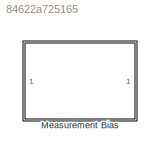
MODEL slx_84622a725165
KIND library
CONFIG AbsTol = auto
CONFIG EnableMultiTasking = off
CONFIG FixedStep = auto
CONFIG MaxStep = auto
CONFIG MinStep = auto
CONFIG RelTol = 1e-3
CONFIG SampleTimeConstraint = Unconstrained
CONFIG Solver = VariableStepAuto
CONFIG SolverName = VariableStepAuto
CONFIG StartTime = 0.0
CONFIG StopTime = 10.0
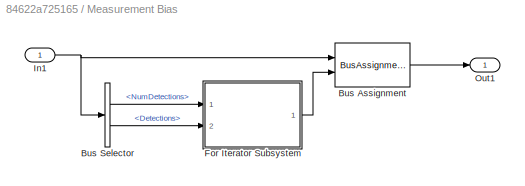
BLOCK [SubSystem] Measurement Bias
  AttributesFormatString = --------------------------------------\noffsetPositionX = %<offsetPositionX>
  Ports = [1, 1]
  RequestExecContextInheritance = off
BLOCK [BusAssignment] Measurement Bias/Bus Assignment
  AssignedSignals = Detections
  Ports = [2, 1]
BLOCK [BusSelector] Measurement Bias/Bus Selector
  OutputSignals = NumDetections,Detections
  Ports = [1, 2]
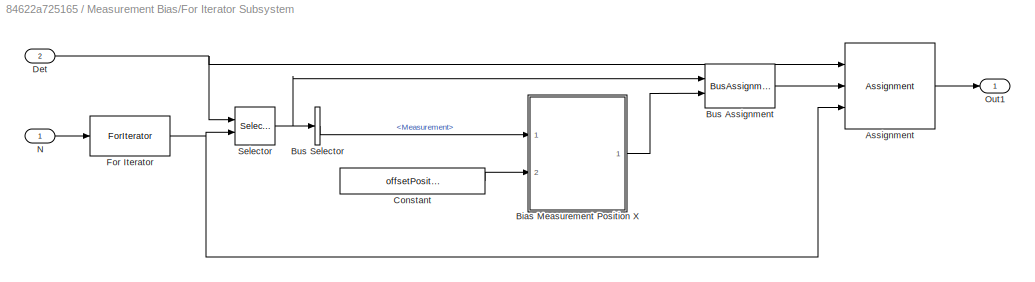
BLOCK [SubSystem] Measurement Bias/For Iterator Subsystem
  Ports = [2, 1]
  RequestExecContextInheritance = off
  TreatAsAtomicUnit = on
BLOCK [Assignment] Measurement Bias/For Iterator Subsystem/Assignment
  DiagnosticForDimensions = Warning
  IndexOptions = Index vector (port)
  Indices = 1
  OutputSizes = 1
  Ports = [3, 1]
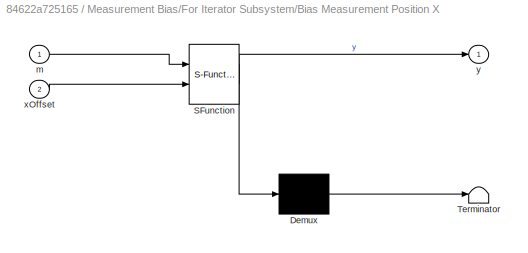
BLOCK [SubSystem] Measurement Bias/For Iterator Subsystem/Bias Measurement Position X
  ErrorFcn = Stateflow.Translate.translate
  PermitHierarchicalResolution = ExplicitOnly
  Ports = [2, 1]
  RequestExecContextInheritance = off
  SFBlockType = MATLAB Function
  TreatAsAtomicUnit = on
BLOCK [Demux] Measurement Bias/For Iterator Subsystem/Bias Measurement Position X/ Demux 
  Outputs = 1
  Ports = [1, 1]
BLOCK [S-Function] Measurement Bias/For Iterator Subsystem/Bias Measurement Position X/ SFunction 
  EnableBusSupport = off
  FunctionName = sf_sfun
  PortCounts = [2 2]
  Ports = [2, 2]
  SFcnIsStateOwnerBlock = off
  SFunctionDeploymentMode = off
  Tag = Stateflow S-Function 2
BLOCK [Terminator] Measurement Bias/For Iterator Subsystem/Bias Measurement Position X/ Terminator 
BLOCK [Inport] Measurement Bias/For Iterator Subsystem/Bias Measurement Position X/m
BLOCK [Inport] Measurement Bias/For Iterator Subsystem/Bias Measurement Position X/xOffset
  Port = 2
BLOCK [Outport] Measurement Bias/For Iterator Subsystem/Bias Measurement Position X/y
BLOCK [BusAssignment] Measurement Bias/For Iterator Subsystem/Bus Assignment
  AssignedSignals = Measurement
  Ports = [2, 1]
BLOCK [BusSelector] Measurement Bias/For Iterator Subsystem/Bus Selector
  OutputSignals = Measurement
  Ports = [1, 1]
BLOCK [Constant] Measurement Bias/For Iterator Subsystem/Constant
  Value = offsetPositionX
BLOCK [Inport] Measurement Bias/For Iterator Subsystem/Det
  Port = 2
BLOCK [ForIterator] Measurement Bias/For Iterator Subsystem/For Iterator
  IterationSource = external
  Ports = [1, 1]
BLOCK [Inport] Measurement Bias/For Iterator Subsystem/N
BLOCK [Outport] Measurement Bias/For Iterator Subsystem/Out1
  VectorParamsAs1DForOutWhenUnconnected = off
BLOCK [Selector] Measurement Bias/For Iterator Subsystem/Selector
  IndexOptions = Index vector (port)
  Indices = [1 3]
  OutputSizes = 1
  Ports = [2, 1]
BLOCK [Inport] Measurement Bias/In1
BLOCK [Outport] Measurement Bias/Out1
  VectorParamsAs1DForOutWhenUnconnected = off
LINE Measurement Bias/Bus Assignment:1 -> Measurement Bias/Out1:1
LINE Measurement Bias/Bus Selector:1 -> Measurement Bias/For Iterator Subsystem:1
LINE Measurement Bias/Bus Selector:2 -> Measurement Bias/For Iterator Subsystem:2
LINE Measurement Bias/For Iterator Subsystem/Assignment:1 -> Measurement Bias/For Iterator Subsystem/Out1:1
LINE Measurement Bias/For Iterator Subsystem/Bias Measurement Position X:1 -> Measurement Bias/For Iterator Subsystem/Bus Assignment:2
LINE Measurement Bias/For Iterator Subsystem/Bus Assignment:1 -> Measurement Bias/For Iterator Subsystem/Assignment:2
LINE Measurement Bias/For Iterator Subsystem/Bus Selector:1 -> Measurement Bias/For Iterator Subsystem/Bias Measurement Position X:1
LINE Measurement Bias/For Iterator Subsystem/Constant:1 -> Measurement Bias/For Iterator Subsystem/Bias Measurement Position X:2
NET Measurement Bias/For Iterator Subsystem/Det:1 -> Measurement Bias/For Iterator Subsystem/Assignment:1, Measurement Bias/For Iterator Subsystem/Selector:1
NET Measurement Bias/For Iterator Subsystem/For Iterator:1 -> Measurement Bias/For Iterator Subsystem/Assignment:3, Measurement Bias/For Iterator Subsystem/Selector:2
LINE Measurement Bias/For Iterator Subsystem/N:1 -> Measurement Bias/For Iterator Subsystem/For Iterator:1
NET Measurement Bias/For Iterator Subsystem/Selector:1 -> Measurement Bias/For Iterator Subsystem/Bus Assignment:1, Measurement Bias/For Iterator Subsystem/Bus Selector:1
LINE Measurement Bias/For Iterator Subsystem:1 -> Measurement Bias/Bus Assignment:2
NET Measurement Bias/In1:1 -> Measurement Bias/Bus Assignment:1, Measurement Bias/Bus Selector:1
note: NET lines group one-source signal fan-out (src -> all destinations, sorted); 1:1 wires keep LINE
CHART Measurement Bias/For Iterator
Subsystem/Bias Measurement Position X states=1 transitions=1
  STATE_LABEL 'eML_blk_kernel()'
  STATE_LABEL 'SCRIPT:\nfunction y = fcn(m, xOffset)\n\ny = m;\ny(1) = y(1) + xOffset;\n'
CHART  states=0 transitions=0
